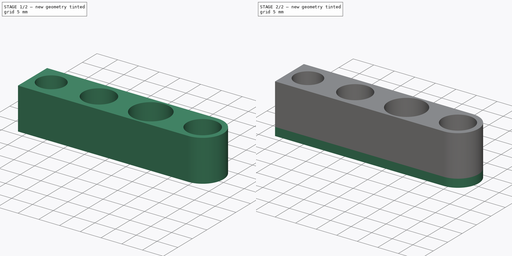
[diagram: build sequence overview — one tinted view per stage of 2, left to right]
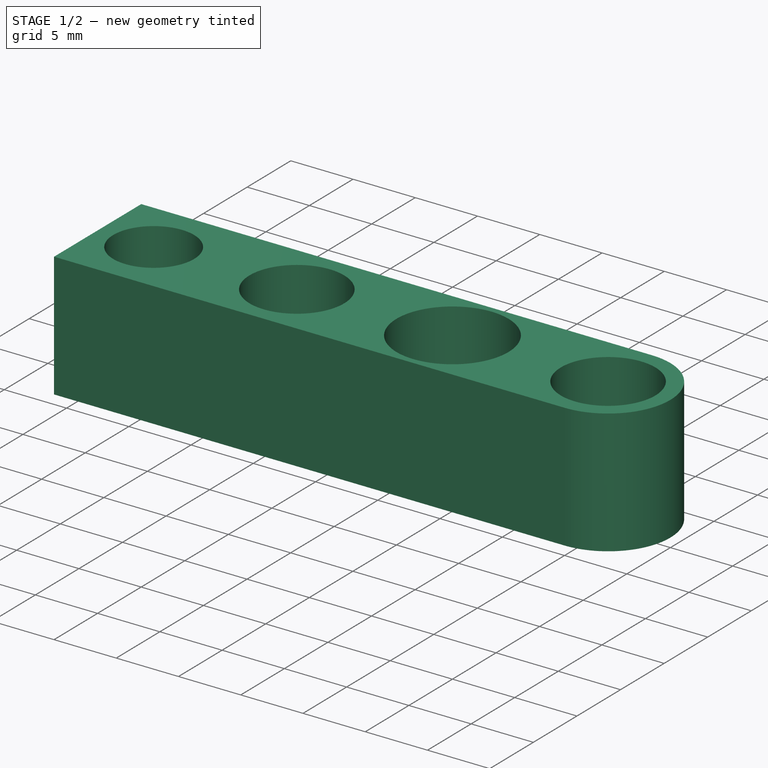
[diagram: stage 1 of 2 — iso view after this stage's code; geometry added in this stage tinted green]
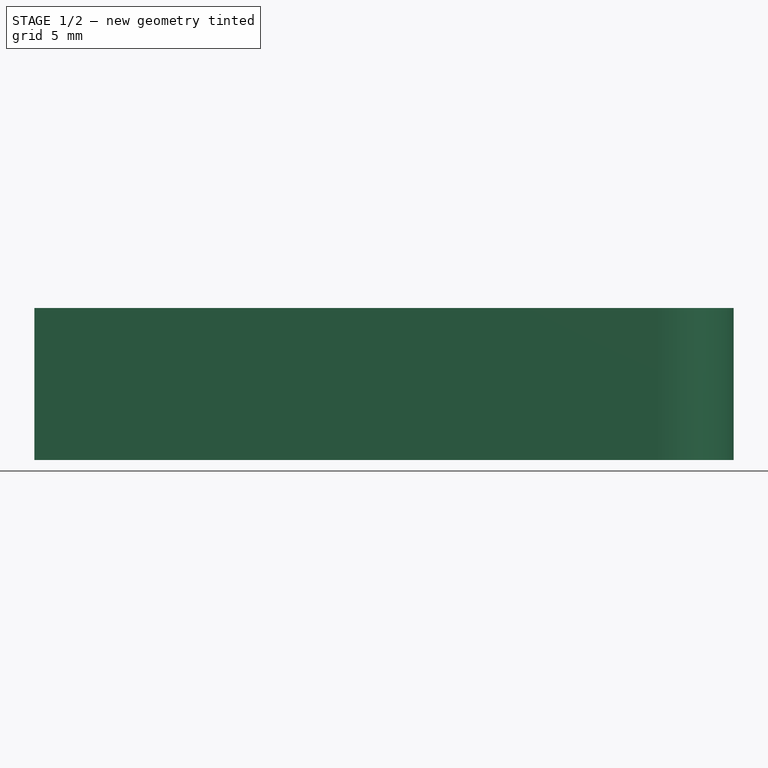
[diagram: stage 1 of 2 — front view after this stage's code; geometry added in this stage tinted green]
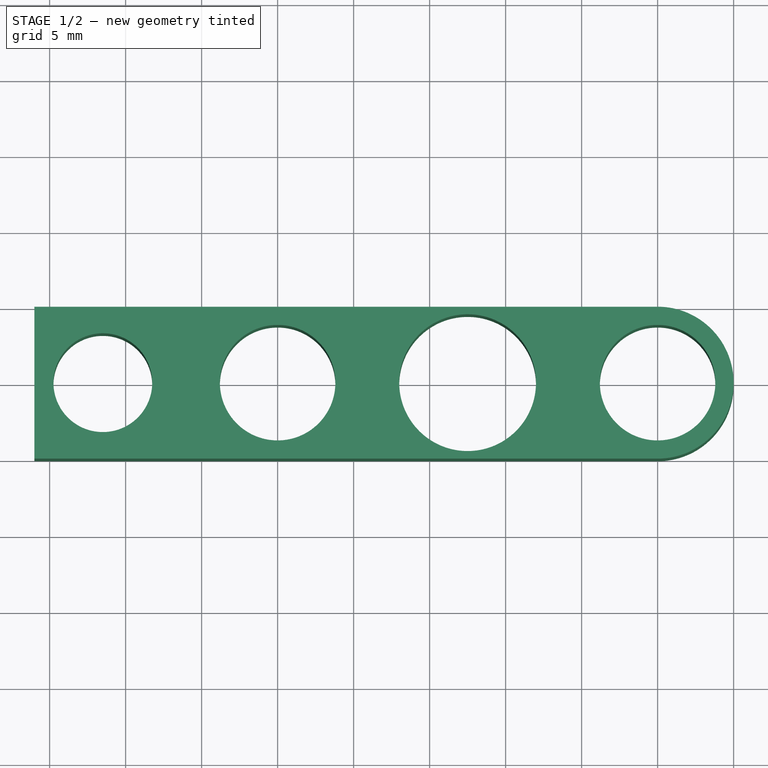
[diagram: stage 1 of 2 — top view after this stage's code; geometry added in this stage tinted green]
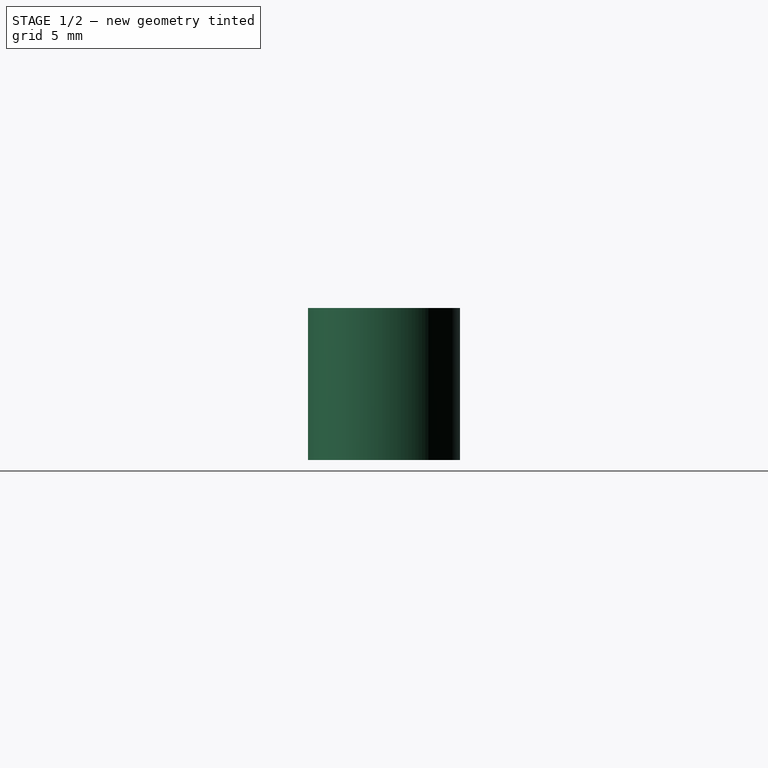
[diagram: stage 1 of 2 — right view after this stage's code; geometry added in this stage tinted green]
FCSTD DOCUMENT  (FreeCAD 0.18R16093 (Git))
Label: motor joint
License: All rights reserved
LicenseURL: http://en.wikipedia.org/wiki/All_rights_reserved
objects: Sketcher::SketchObject×2, PartDesign::Pad×2, PartDesign::Body×1
note: 7 computed .brp shape members not serialized (recipe doc carries the construction recipe); baked Part::Feature solids carry a one-line shape summary decoded from their .brp

FEATURE [Sketcher::SketchObject] Sketch
  MapMode = 5
  Support = -> [XY_Plane]
  expr: Constraints[30] = 6.5 / 2
  expr: Constraints[5] = 7.6 / 2
  expr: Constraints[13] = 9 / 2
  sketch-geometry (12):
    g0: ArcOfCircle CenterX=25 CenterY=0 CenterZ=0 NormalX=0 NormalY=0 NormalZ=1 AngleXU=0 Radius=5 StartAngle=4.71239 EndAngle=7.85398
    g1: LineSegment StartX=0 StartY=-5 StartZ=0 EndX=25 EndY=-5 EndZ=0
    g2: LineSegment StartX=0 StartY=5 StartZ=0 EndX=25 EndY=5 EndZ=0
    g3: Circle CenterX=0 CenterY=0 CenterZ=0 NormalX=0 NormalY=0 NormalZ=1 AngleXU=0 Radius=3.8
    g4: Circle CenterX=25 CenterY=0 CenterZ=0 NormalX=0 NormalY=0 NormalZ=1 AngleXU=0 Radius=3.8
    g5: LineSegment [constr] StartX=0 StartY=0 StartZ=0 EndX=12.5 EndY=0 EndZ=0
    g6: LineSegment [constr] StartX=12.5 StartY=0 StartZ=0 EndX=25 EndY=0 EndZ=0
    g7: Circle CenterX=12.5 CenterY=0 CenterZ=0 NormalX=0 NormalY=0 NormalZ=1 AngleXU=0 Radius=4.5
    g8: LineSegment StartX=0 StartY=5 StartZ=0 EndX=-16 EndY=5 EndZ=0
    g9: LineSegment StartX=-16 StartY=5 StartZ=0 EndX=-16 EndY=-5 EndZ=0
    g10: LineSegment StartX=-16 StartY=-5 StartZ=0 EndX=0 EndY=-5 EndZ=0
    g11: Circle CenterX=-11.5 CenterY=0 CenterZ=0 NormalX=0 NormalY=0 NormalZ=1 AngleXU=0 Radius=3.25
  constraints (31):
    c: Tangent(g1,g0) = -1.5708
    c: Tangent(g2,g0) = 1.5708
    c: Horizontal(g1)
    c: Coincident(g4,g0)
    c: Equal(g3,g4)
    c: Radius(g3) = 3.8
    c: PointOnObject(g5,g-1)
    c: Coincident(g5,g6)
    c: Coincident(g6,g0)
    c: Equal(g6,g5)
    c: DistanceX(g2,g2) = 25
    c: DistanceY(g0,g0) = 10
    c: Coincident(g7,g5)
    c: Radius(g7) = 4.5
    c: Coincident(g2,g8)
    c: Horizontal(g8)
    c: Coincident(g8,g9)
    c: Vertical(g9)
    c: Coincident(g9,g10)
    c: Coincident(g10,g1)
    c: Horizontal(g10)
    c: DistanceX(g8,g8) = 16
    c: Horizontal(g2)
    c: Horizontal(g6)
    c: PointOnObject(g1,g-2)
    c: PointOnObject(g2,g-2)
    c: Coincident(g5,g3)
    c: Coincident(g3,g-1)
    c: PointOnObject(g11,g-1)
    c: DistanceX(g11,g7) = 24
    c: Radius(g11) = 3.25
FEATURE [PartDesign::Pad] Pad
  Length = 10
  Length2 = 100
  Profile = -> Sketch
  Type = 0
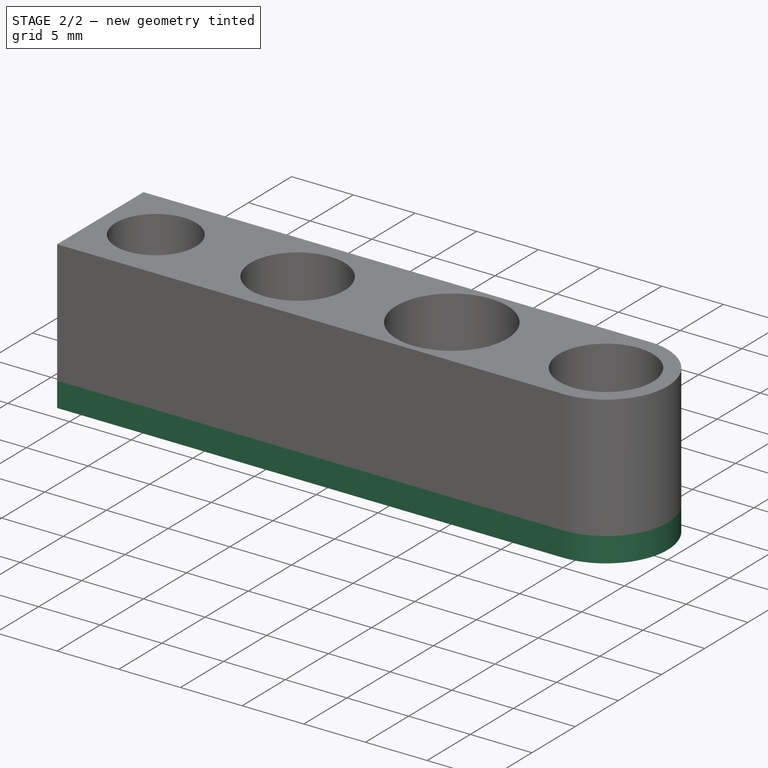
[diagram: stage 2 of 2 — iso view after this stage's code; geometry added in this stage tinted green]
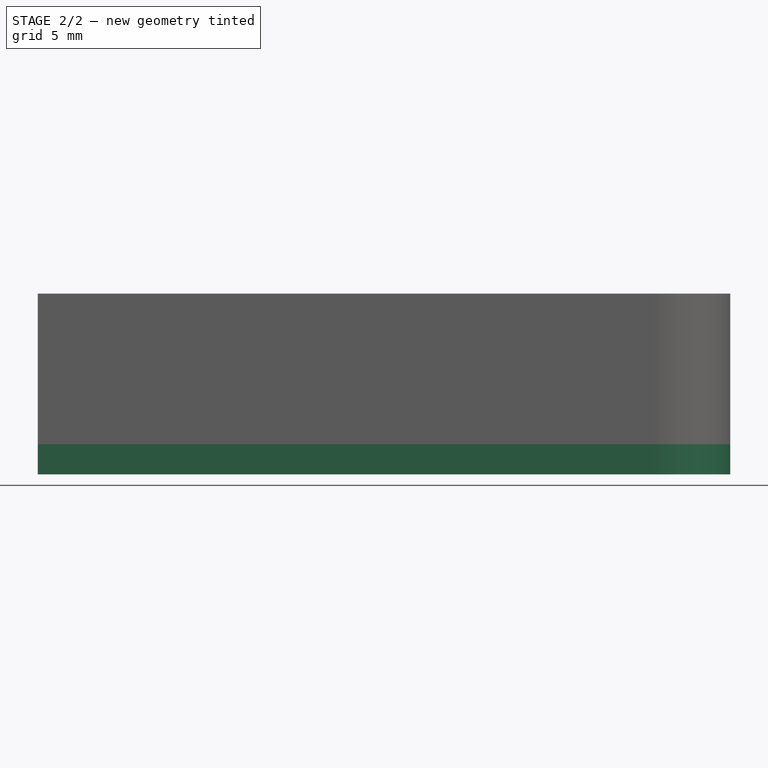
[diagram: stage 2 of 2 — front view after this stage's code; geometry added in this stage tinted green]
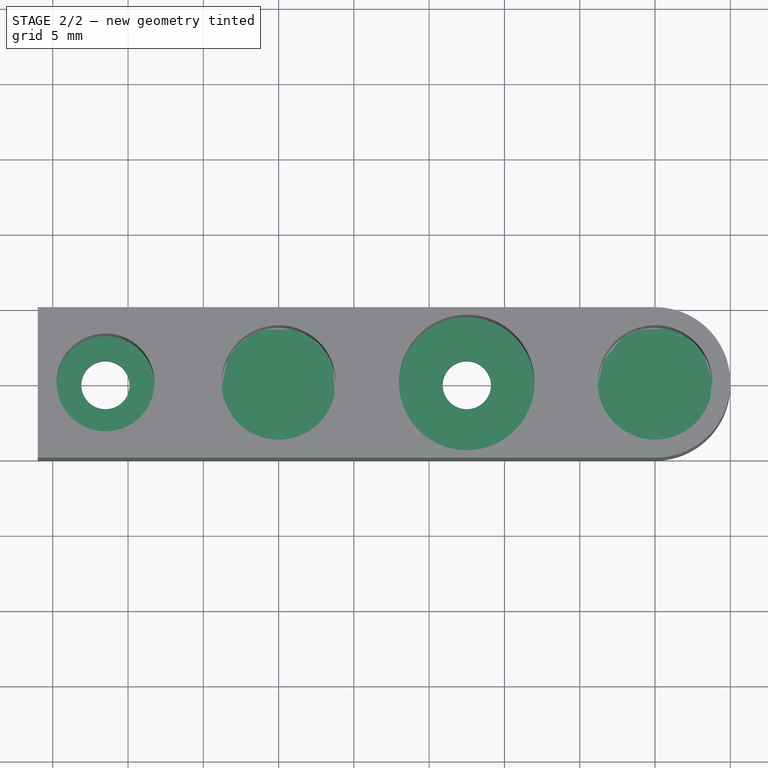
[diagram: stage 2 of 2 — top view after this stage's code; geometry added in this stage tinted green]
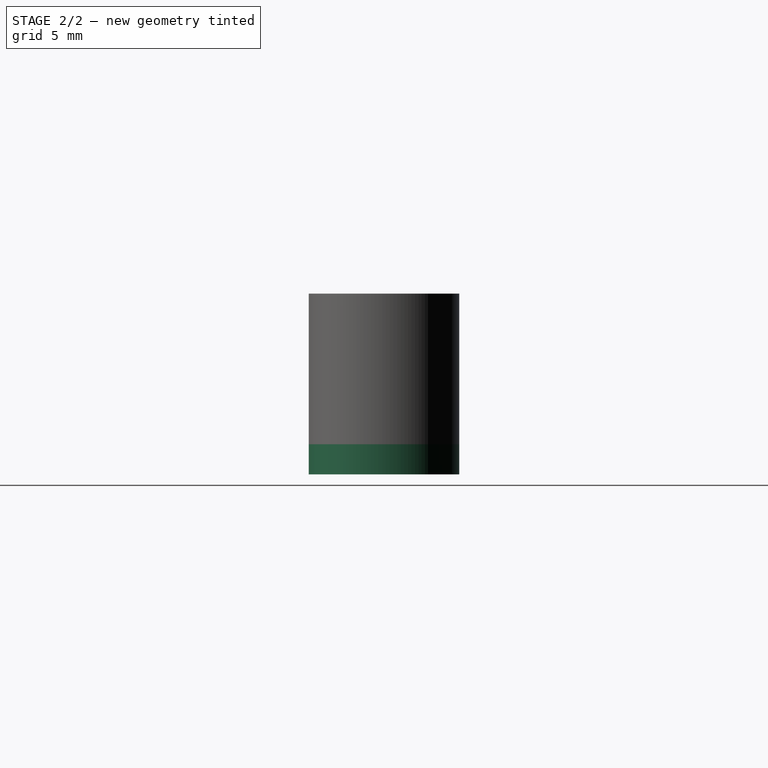
[diagram: stage 2 of 2 — right view after this stage's code; geometry added in this stage tinted green]
FEATURE [Sketcher::SketchObject] Sketch001
  MapMode = 5
  Placement = pos=(0,0,0) rot=(1,0,0;3.14159rad)
  Support = -> [Pad]
  expr: Constraints[19] = 3.2 / 2
  sketch-geometry (8):
    g0: ArcOfCircle CenterX=25 CenterY=0 CenterZ=0 NormalX=0 NormalY=0 NormalZ=1 AngleXU=0 Radius=5 StartAngle=4.71239 EndAngle=7.85398
    g1: LineSegment StartX=0 StartY=-5 StartZ=0 EndX=25 EndY=-5 EndZ=0
    g2: LineSegment StartX=0 StartY=5 StartZ=0 EndX=25 EndY=5 EndZ=0
    g3: LineSegment StartX=0 StartY=5 StartZ=0 EndX=-16 EndY=5 EndZ=0
    g4: LineSegment StartX=-16 StartY=5 StartZ=0 EndX=-16 EndY=-5 EndZ=0
    g5: LineSegment StartX=-16 StartY=-5 StartZ=0 EndX=0 EndY=-5 EndZ=0
    g6: Circle CenterX=12.5 CenterY=0 CenterZ=0 NormalX=0 NormalY=0 NormalZ=1 AngleXU=0 Radius=1.6
    g7: Circle CenterX=-11.5 CenterY=0 CenterZ=0 NormalX=0 NormalY=0 NormalZ=1 AngleXU=0 Radius=1.6
  constraints (23):
    c: Tangent(g1,g0) = -1.5708
    c: Tangent(g2,g0) = 1.5708
    c: Horizontal(g1)
    c: DistanceX(g2,g2) = 25
    c: DistanceY(g0,g0) = 10
    c: Horizontal(g3)
    c: Coincident(g3,g4)
    c: Vertical(g4)
    c: Coincident(g4,g5)
    c: Coincident(g5,g1)
    c: Horizontal(g5)
    c: DistanceX(g3,g3) = 16
    c: Coincident(g3,g2)
    c: Horizontal(g2)
    c: PointOnObject(g1,g-2)
    c: PointOnObject(g2,g-2)
    c: PointOnObject(g0,g-1)
    c: PointOnObject(g6,g-1)
    c: DistanceX(g-1,g6) = 12.5
    c: Radius(g6) = 1.6
    c: PointOnObject(g7,g-1)
    c: DistanceX(g7,g6) = 24
    c: Equal(g7,g6)
FEATURE [PartDesign::Pad] Pad001
  BaseFeature = -> Pad
  Length = 2
  Length2 = 100
  Profile = -> Sketch001
  Type = 0
FEATURE [PartDesign::Body] Body
  Group = -> [Sketch,Pad,Sketch001,Pad001]
  Origin = -> Origin
  Tip = -> Pad001
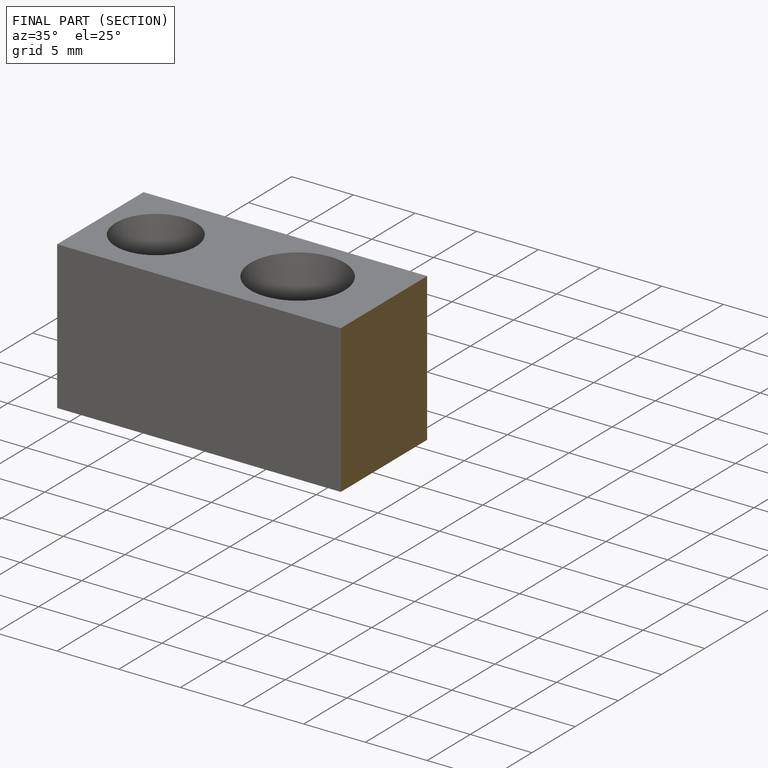
[diagram: finished part — half-section view (interior)]
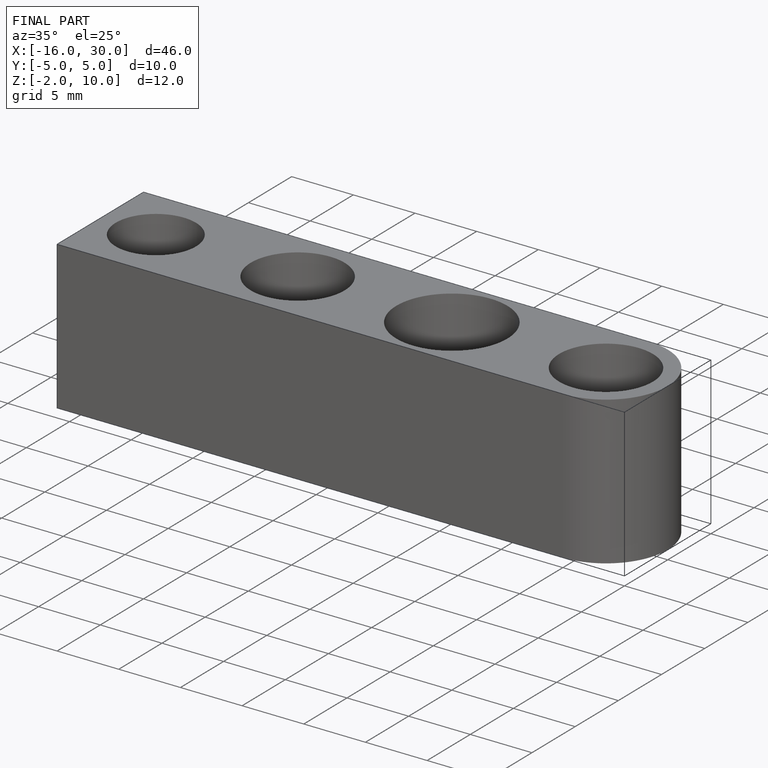
[diagram: finished part — iso view with bounding-box wireframe]
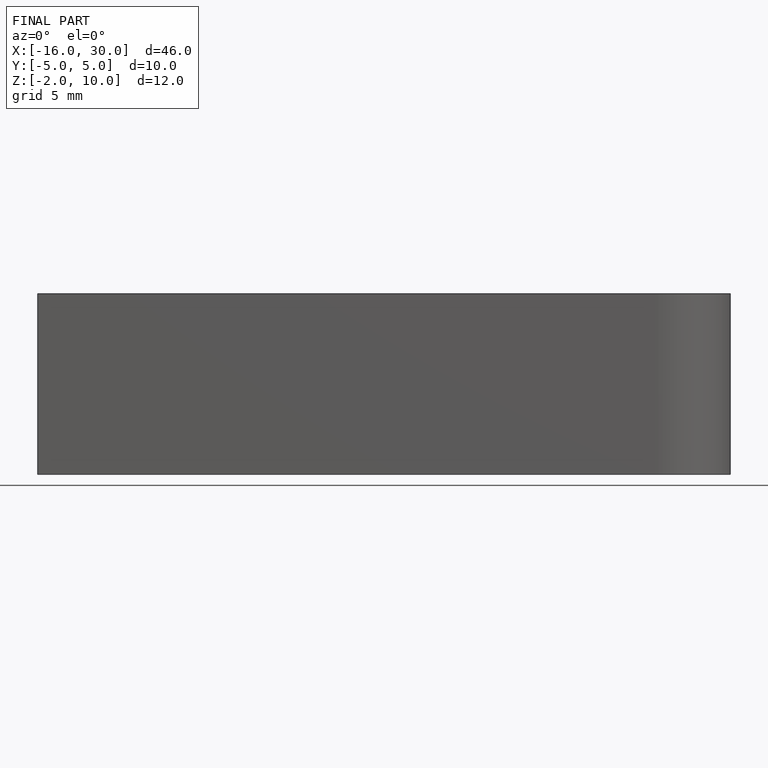
[diagram: finished part — front view with bounding-box wireframe]
